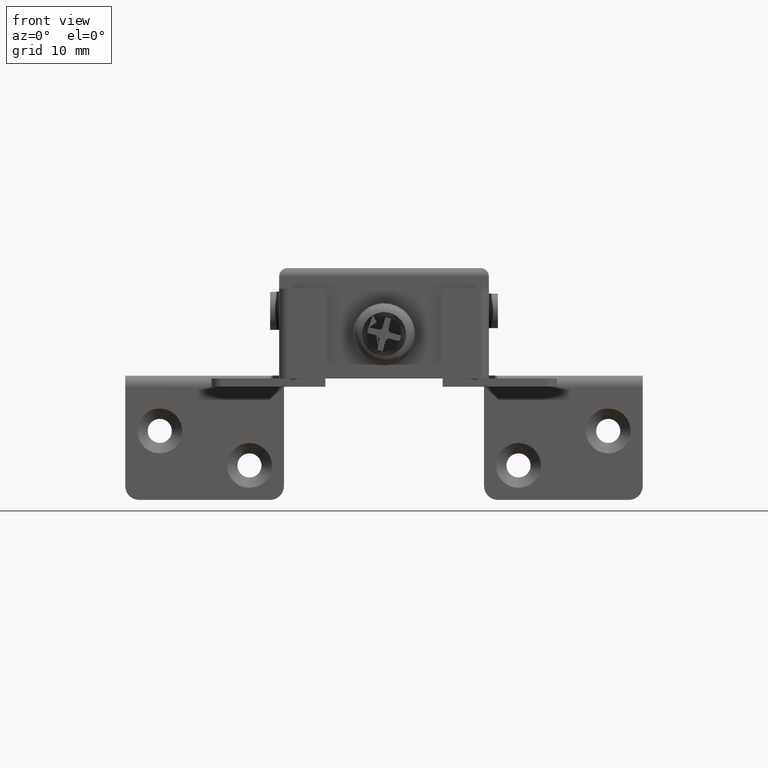
[diagram: clean part render]
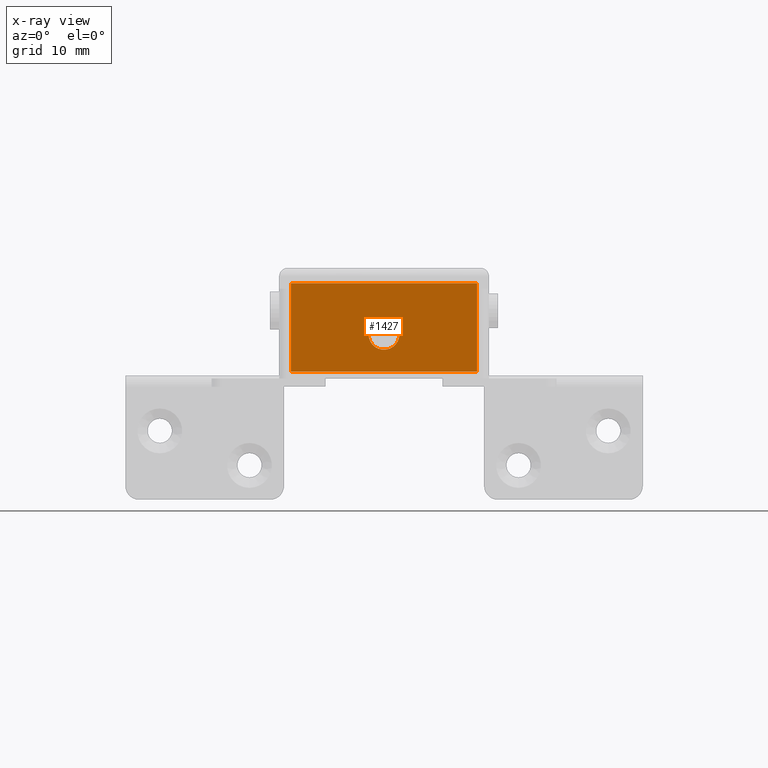
[diagram: x-ray — body ghosted, one internal face saturated and labeled with its STEP entity id]
A machine part, front view, then the same camera in x-ray: the body is ghosted and one INTERNAL B-rep face — a face not visible from any outside direction — is saturated and labeled: STEP entity #1427.
In plain terms, the highlighted planar face has unit normal (0, 1, 0).
Its self-contained STEP definition (entity closure, byte-faithful):
#28 = VERTEX_POINT ( 'NONE', #8409 ) ;
#53 = CARTESIAN_POINT ( 'NONE',  ( -13.50000000000000000, 995.9999880000000300, -47.80000299999989700 ) ) ;
#187 = VECTOR ( 'NONE', #5038, 1000.000000000000000 ) ;
#284 = CARTESIAN_POINT ( 'NONE',  ( 13.50000000000000000, 8.799987999999999000, -47.80000299999989700 ) ) ;
#563 = CIRCLE ( 'NONE', #9071, 2.240006000000195100 ) ;
#677 = EDGE_CURVE ( 'NONE', #4814, #28, #6929, .T. ) ;
#694 = DIRECTION ( 'NONE',  ( 0.0000000000000000000, 0.0000000000000000000, -1.000000000000000000 ) ) ;
#801 = LINE ( 'NONE', #9338, #3031 ) ;
#809 = VERTEX_POINT ( 'NONE', #10342 ) ;
#903 = ORIENTED_EDGE ( 'NONE', *, *, #8008, .F. ) ;
#1347 = EDGE_CURVE ( 'NONE', #5359, #7406, #10944, .T. ) ;
#1406 = ORIENTED_EDGE ( 'NONE', *, *, #3356, .F. ) ;
#1427 = ADVANCED_FACE ( 'NONE', ( #10382, #1590 ), #5414, .F. ) ;
#1450 = EDGE_LOOP ( 'NONE', ( #903, #5927 ) ) ;
#1590 = FACE_BOUND ( 'NONE', #1450, .T. ) ;
#1717 = VERTEX_POINT ( 'NONE', #8511 ) ;
#1982 = DIRECTION ( 'NONE',  ( 0.0000000000000000000, 0.0000000000000000000, -1.000000000000000000 ) ) ;
#2205 = LINE ( 'NONE', #53, #4190 ) ;
#2356 = AXIS2_PLACEMENT_3D ( 'NONE', #7065, #1982, #7936 ) ;
#2695 = VECTOR ( 'NONE', #9325, 1000.000000000000000 ) ;
#2802 = CARTESIAN_POINT ( 'NONE',  ( -2.240006000000195100, 3.399963000000000100, -47.80000299999989700 ) ) ;
#2852 = ORIENTED_EDGE ( 'NONE', *, *, #6037, .T. ) ;
#2904 = DIRECTION ( 'NONE',  ( 1.000000000000000000, 0.0000000000000000000, 0.0000000000000000000 ) ) ;
#3031 = VECTOR ( 'NONE', #5054, 1000.000000000000000 ) ;
#3356 = EDGE_CURVE ( 'NONE', #28, #809, #2205, .T. ) ;
#4190 = VECTOR ( 'NONE', #10212, 1000.000000000000000 ) ;
#4814 = VERTEX_POINT ( 'NONE', #284 ) ;
#5038 = DIRECTION ( 'NONE',  ( -1.000000000000000000, 0.0000000000000000000, 0.0000000000000000000 ) ) ;
#5054 = DIRECTION ( 'NONE',  ( 0.0000000000000000000, -1.000000000000000000, 0.0000000000000000000 ) ) ;
#5359 = VERTEX_POINT ( 'NONE', #10219 ) ;
#5414 = PLANE ( 'NONE',  #6326 ) ;
#5738 = CARTESIAN_POINT ( 'NONE',  ( 0.0000000000000000000, 3.399963000000000100, -47.80000299999989700 ) ) ;
#5927 = ORIENTED_EDGE ( 'NONE', *, *, #1347, .F. ) ;
#6037 = EDGE_CURVE ( 'NONE', #1717, #809, #9512, .T. ) ;
#6326 = AXIS2_PLACEMENT_3D ( 'NONE', #9700, #8006, #2904 ) ;
#6613 = DIRECTION ( 'NONE',  ( -1.000000000000000000, 0.0000000000000000000, 0.0000000000000000000 ) ) ;
#6751 = CARTESIAN_POINT ( 'NONE',  ( 13.50000000000000000, 8.799987999999999000, -47.80000299999989700 ) ) ;
#6929 = LINE ( 'NONE', #6751, #187 ) ;
#7033 = EDGE_LOOP ( 'NONE', ( #2852, #1406, #10641, #8907 ) ) ;
#7065 = CARTESIAN_POINT ( 'NONE',  ( 0.0000000000000000000, 3.399963000000000100, -47.80000299999989700 ) ) ;
#7406 = VERTEX_POINT ( 'NONE', #2802 ) ;
#7936 = DIRECTION ( 'NONE',  ( -1.000000000000000000, 0.0000000000000000000, 0.0000000000000000000 ) ) ;
#8006 = DIRECTION ( 'NONE',  ( 0.0000000000000000000, 0.0000000000000000000, 1.000000000000000000 ) ) ;
#8008 = EDGE_CURVE ( 'NONE', #7406, #5359, #563, .T. ) ;
#8409 = CARTESIAN_POINT ( 'NONE',  ( -13.50000000000000000, 8.799987999999999000, -47.80000299999989700 ) ) ;
#8511 = CARTESIAN_POINT ( 'NONE',  ( 13.50000000000000000, -4.000012000000110000, -47.80000299999989700 ) ) ;
#8907 = ORIENTED_EDGE ( 'NONE', *, *, #9589, .T. ) ;
#9071 = AXIS2_PLACEMENT_3D ( 'NONE', #5738, #694, #6613 ) ;
#9283 = CARTESIAN_POINT ( 'NONE',  ( 13.50000000000000000, -4.000012000000110000, -47.80000299999989700 ) ) ;
#9325 = DIRECTION ( 'NONE',  ( -1.000000000000000000, 0.0000000000000000000, 0.0000000000000000000 ) ) ;
#9338 = CARTESIAN_POINT ( 'NONE',  ( 13.50000000000000000, 995.9999880000000300, -47.80000299999989700 ) ) ;
#9512 = LINE ( 'NONE', #9283, #2695 ) ;
#9589 = EDGE_CURVE ( 'NONE', #4814, #1717, #801, .T. ) ;
#9700 = CARTESIAN_POINT ( 'NONE',  ( 13.50000000000000000, 995.9999880000000300, -47.80000299999989700 ) ) ;
#10212 = DIRECTION ( 'NONE',  ( 0.0000000000000000000, -1.000000000000000000, 0.0000000000000000000 ) ) ;
#10219 = CARTESIAN_POINT ( 'NONE',  ( 2.240006000000195100, 3.399963000000000500, -47.80000299999989700 ) ) ;
#10342 = CARTESIAN_POINT ( 'NONE',  ( -13.50000000000000000, -4.000012000000110000, -47.80000299999989700 ) ) ;
#10382 = FACE_OUTER_BOUND ( 'NONE', #7033, .T. ) ;
#10641 = ORIENTED_EDGE ( 'NONE', *, *, #677, .F. ) ;
#10944 = CIRCLE ( 'NONE', #2356, 2.240006000000195100 ) ;